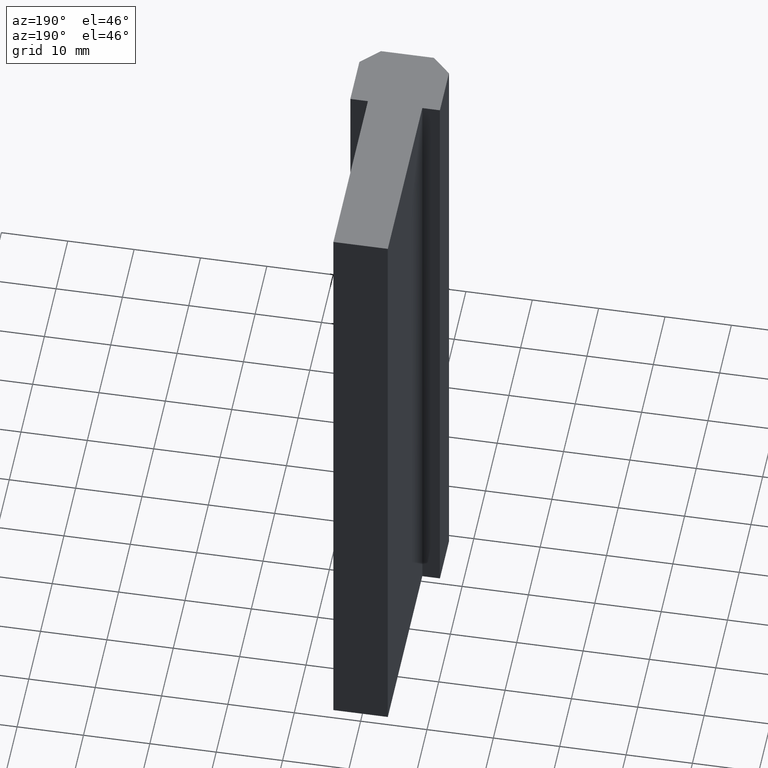
[diagram: clean part render]
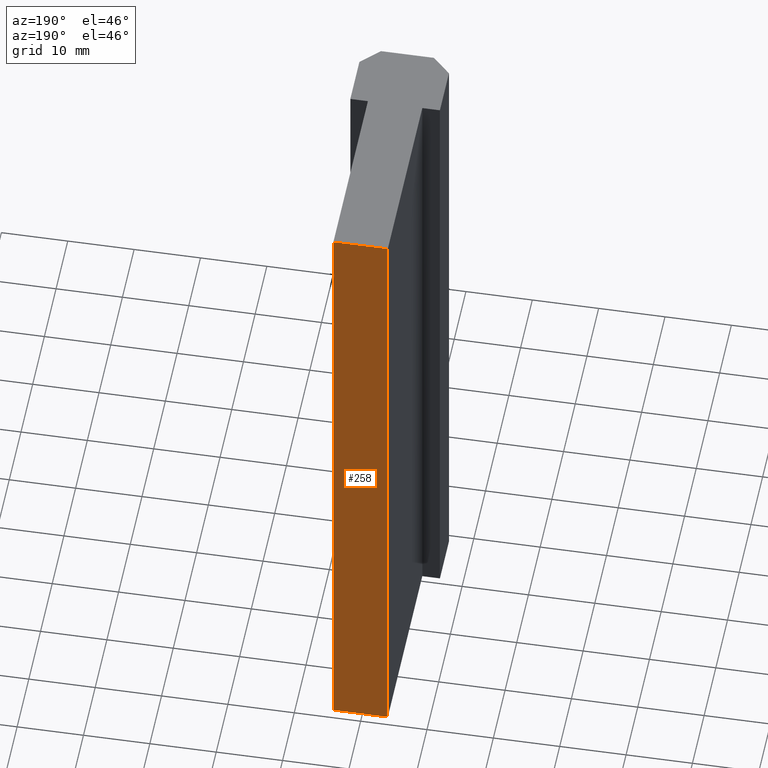
[diagram: same view with one face highlighted and labeled with its STEP entity id]
A machine part, auxiliary view. The second image highlights one B-rep face of the part: STEP entity #258.
In plain terms, the highlighted planar face has unit normal (0, 1, 0).
Its self-contained STEP definition (entity closure, byte-faithful):
#202=CARTESIAN_POINT('',(4.099999999983766,39.999999999839929,0.0));
#203=VERTEX_POINT('',#202);
#210=CARTESIAN_POINT('',(4.099999999983766,39.999999999839929,100.0));
#211=VERTEX_POINT('',#210);
#212=CARTESIAN_POINT('',(4.099999999983766,39.999999999839929,0.0));
#213=DIRECTION('',(0.0,0.0,1.0));
#214=VECTOR('',#213,100.0);
#215=LINE('',#212,#214);
#216=EDGE_CURVE('',#203,#211,#215,.T.);
#228=CARTESIAN_POINT('',(4.099999999983766,39.999999999839929,0.0));
#229=DIRECTION('',(0.0,1.0,0.0));
#230=DIRECTION('',(-1.0,0.0,0.0));
#231=AXIS2_PLACEMENT_3D('',#228,#229,#230);
#232=PLANE('',#231);
#233=CARTESIAN_POINT('',(-4.099999999983538,39.999999999839929,0.0));
#234=VERTEX_POINT('',#233);
#235=CARTESIAN_POINT('',(4.099999999983671,39.999999999839929,0.0));
#236=DIRECTION('',(-1.0,0.0,0.0));
#237=VECTOR('',#236,8.199999999967210);
#238=LINE('',#235,#237);
#239=EDGE_CURVE('',#203,#234,#238,.T.);
#240=ORIENTED_EDGE('',*,*,#239,.T.);
#241=CARTESIAN_POINT('',(-4.099999999983538,39.999999999839929,100.0));
#242=VERTEX_POINT('',#241);
#243=CARTESIAN_POINT('',(-4.099999999983538,39.999999999839929,0.0));
#244=DIRECTION('',(0.0,0.0,1.0));
#245=VECTOR('',#244,100.0);
#246=LINE('',#243,#245);
#247=EDGE_CURVE('',#234,#242,#246,.T.);
#248=ORIENTED_EDGE('',*,*,#247,.T.);
#249=CARTESIAN_POINT('',(4.099999999983671,39.999999999839929,100.0));
#250=DIRECTION('',(-1.0,0.0,0.0));
#251=VECTOR('',#250,8.199999999967210);
#252=LINE('',#249,#251);
#253=EDGE_CURVE('',#211,#242,#252,.T.);
#254=ORIENTED_EDGE('',*,*,#253,.F.);
#255=ORIENTED_EDGE('',*,*,#216,.F.);
#256=EDGE_LOOP('',(#240,#248,#254,#255));
#257=FACE_OUTER_BOUND('',#256,.T.);
#258=ADVANCED_FACE('',(#257),#232,.T.);